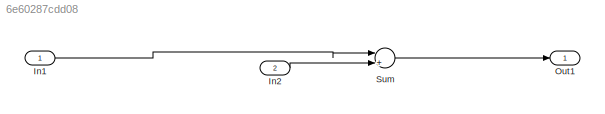
MODEL slx_6e60287cdd08
KIND model
CONFIG AbsTol = auto
CONFIG EnableMultiTasking = off
CONFIG FixedStep = auto
CONFIG MaxStep = auto
CONFIG MinStep = auto
CONFIG RelTol = 1e-3
CONFIG SampleTimeConstraint = Unconstrained
CONFIG Solver = FixedStepDiscrete
CONFIG SolverName = FixedStepDiscrete
CONFIG StartTime = 0.0
CONFIG StopTime = 30.0
BLOCK [Inport] In1
  IconDisplay = Port number
  OutDataTypeStr = int16
  PortDimensions = [1 1]
  SampleTime = [2.2675736961451248e-05,0]
  SamplingMode = Sample based
  SignalType = real
BLOCK [Inport] In2
  IconDisplay = Port number
  OutDataTypeStr = int16
  Port = 2
  PortDimensions = [1 1]
  SampleTime = [2.2675736961451248e-05,0]
  SamplingMode = Sample based
  SignalType = real
BLOCK [Outport] Out1
  IconDisplay = Port number
  OutDataTypeStr = int16
  PortDimensions = [1 1]
  SampleTime = [2.2675736961451248e-05,0]
  SamplingMode = Sample based
  SignalType = real
BLOCK [Sum] Sum
  AccumDataTypeStr = int16
  InputSameDT = off
  Inputs = |++
  OutDataTypeStr = Inherit: Inherit via internal rule
  Ports = [2, 1]
  SaturateOnIntegerOverflow = off
LINE In1:1 -> Sum:1
LINE In2:1 -> Sum:2
LINE Sum:1 -> Out1:1
